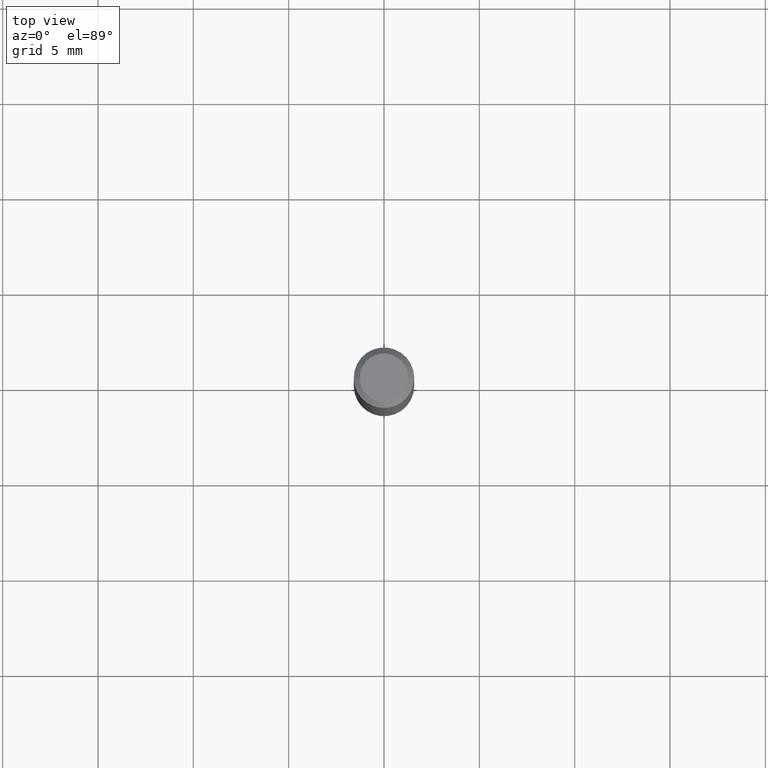
[diagram: clean part render]
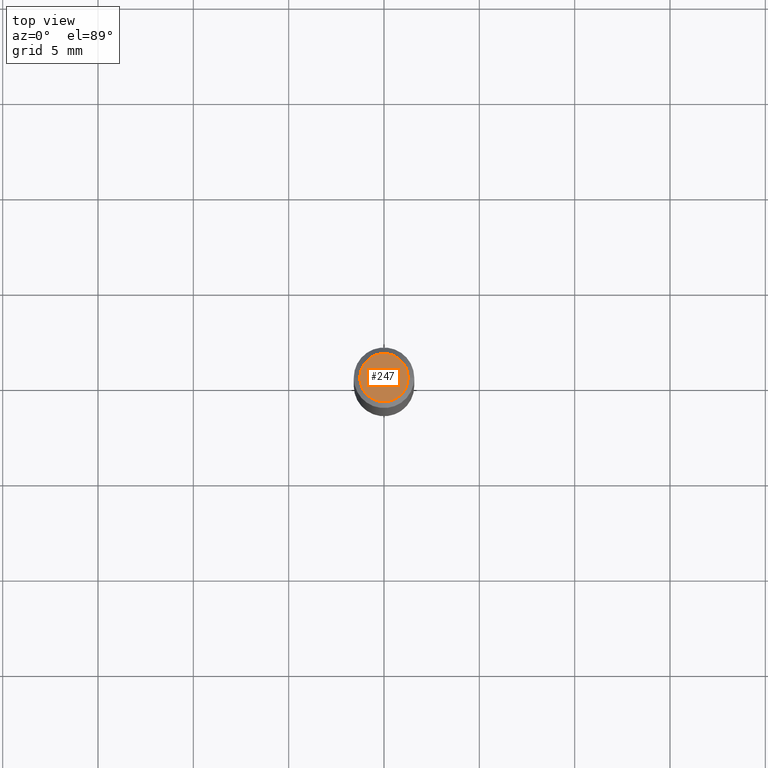
[diagram: same view with one face highlighted and labeled with its STEP entity id]
A machine part, top view. The second image highlights one B-rep face of the part: STEP entity #247.
In plain terms, the highlighted planar face has unit normal (0, -0, -1).
Its self-contained STEP definition (entity closure, byte-faithful):
#6 = DIRECTION ( 'NONE',  ( 1.000000000000000000, -6.982962677686265922E-15, 4.875957971899673662E-29 ) ) ;
#7 = CARTESIAN_POINT ( 'NONE',  ( 0.04999999999999999584, -4.077247707424184212E-16, -1.592040838888913461E-18 ) ) ;
#34 = DIRECTION ( 'NONE',  ( -2.445468806185136597E-29, 3.491481338843145583E-15, 1.000000000000000000 ) ) ;
#35 = EDGE_CURVE ( 'NONE', #484, #291, #358, .T. ) ;
#40 = AXIS2_PLACEMENT_3D ( 'NONE', #249, #220, #174 ) ;
#70 = CARTESIAN_POINT ( 'NONE',  ( 3.893286209682126177E-47, -5.558580879666067980E-33, -1.592040838891559689E-18 ) ) ;
#105 = CARTESIAN_POINT ( 'NONE',  ( -0.04999999999999999584, 3.709698922520826725E-16, -1.592040838894077649E-18 ) ) ;
#144 = FACE_OUTER_BOUND ( 'NONE', #411, .T. ) ;
#174 = DIRECTION ( 'NONE',  ( -1.000000000000000000, 6.982962677686265922E-15, -4.876176775795935793E-29 ) ) ;
#175 = ORIENTED_EDGE ( 'NONE', *, *, #35, .T. ) ;
#204 = AXIS2_PLACEMENT_3D ( 'NONE', #408, #260, #6 ) ;
#220 = DIRECTION ( 'NONE',  ( 2.438088387897960049E-29, -3.491481338843145188E-15, -1.000000000000000000 ) ) ;
#222 = ORIENTED_EDGE ( 'NONE', *, *, #401, .T. ) ;
#229 = AXIS2_PLACEMENT_3D ( 'NONE', #70, #34, #296 ) ;
#247 = ADVANCED_FACE ( 'NONE', ( #144 ), #283, .F. ) ;
#249 = CARTESIAN_POINT ( 'NONE',  ( 1.946643104841063088E-47, -2.779290439833033990E-33, -7.960204194457798443E-19 ) ) ;
#260 = DIRECTION ( 'NONE',  ( -2.445468806185136597E-29, 3.491481338843145583E-15, 1.000000000000000000 ) ) ;
#283 = PLANE ( 'NONE',  #40 ) ;
#291 = VERTEX_POINT ( 'NONE', #105 ) ;
#296 = DIRECTION ( 'NONE',  ( 1.000000000000000000, -6.982962677686265922E-15, 4.875957971899673662E-29 ) ) ;
#358 = CIRCLE ( 'NONE', #204, 0.04999999999999999584 ) ;
#368 = CIRCLE ( 'NONE', #229, 0.04999999999999999584 ) ;
#401 = EDGE_CURVE ( 'NONE', #291, #484, #368, .T. ) ;
#408 = CARTESIAN_POINT ( 'NONE',  ( 3.893286209682126177E-47, -5.558580879666067980E-33, -1.592040838891559689E-18 ) ) ;
#411 = EDGE_LOOP ( 'NONE', ( #222, #175 ) ) ;
#484 = VERTEX_POINT ( 'NONE', #7 ) ;